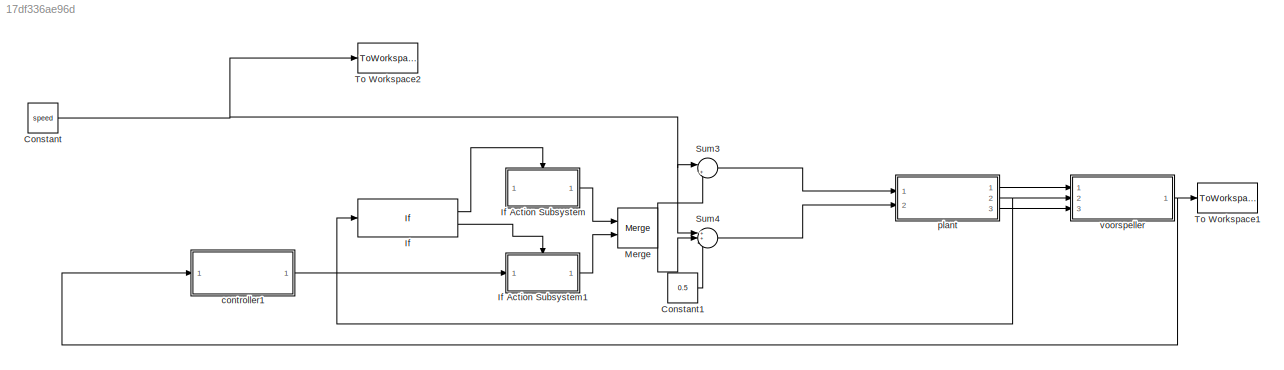
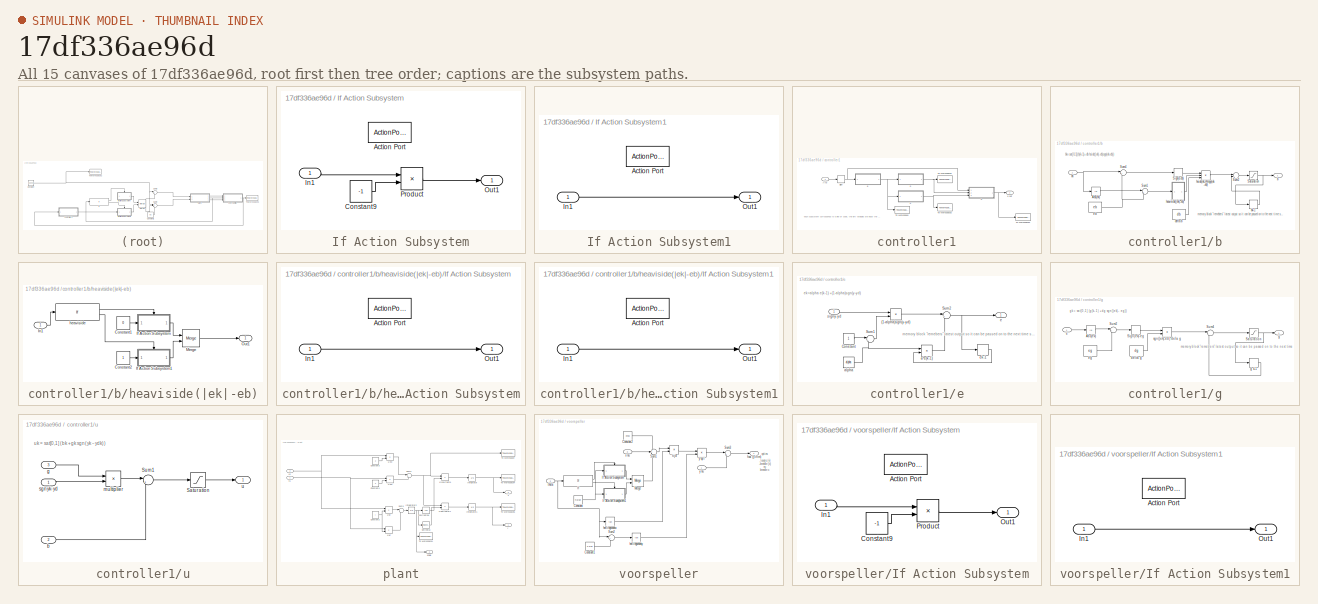
[diagram: thumbnail index - all 15 canvases of the model, root first then tree order]
MODEL slx_17df336ae96d
KIND model
CONFIG AbsTol = auto
CONFIG FixedStep = auto
CONFIG MaxStep = auto
CONFIG MinStep = auto
CONFIG RelTol = 1e-3
CONFIG SampleTimeConstraint = Unconstrained
CONFIG Solver = ode45
CONFIG SolverMode = Auto
CONFIG SolverName = ode45
CONFIG StartTime = 0.0
CONFIG StopTime = 10.0
BLOCK [Constant] Constant
  Value = speed
BLOCK [Constant] Constant1
  Value = 0.5
BLOCK [If] If
  IfExpression = 1.57<u1>4.71
  Ports = [1, 2]
BLOCK [SubSystem] If Action Subsystem
  Ports = [1, 1, 0, 0, 0, 0, 0, 1]
  RequestExecContextInheritance = off
  TreatAsAtomicUnit = on
BLOCK [ActionPort] If Action Subsystem/Action Port
  ActionType = then
BLOCK [Constant] If Action Subsystem/Constant9
  Value = -1
BLOCK [Inport] If Action Subsystem/In1
  IconDisplay = Port number
BLOCK [Outport] If Action Subsystem/Out1
  IconDisplay = Port number
BLOCK [Product] If Action Subsystem/Product
  InputSameDT = off
  OutDataTypeStr = Inherit: Inherit via internal rule
  Ports = [2, 1]
  RndMeth = Floor
  SaturateOnIntegerOverflow = off
BLOCK [SubSystem] If Action Subsystem1
  Ports = [1, 1, 0, 0, 0, 0, 0, 1]
  RequestExecContextInheritance = off
  TreatAsAtomicUnit = on
BLOCK [ActionPort] If Action Subsystem1/Action Port
  ActionType = else
BLOCK [Inport] If Action Subsystem1/In1
  IconDisplay = Port number
BLOCK [Outport] If Action Subsystem1/Out1
  IconDisplay = Port number
BLOCK [Merge] Merge
  Ports = [2, 1]
BLOCK [Sum] Sum3
  IconShape = round
  InputSameDT = off
  Inputs = |+-
  OutDataTypeStr = Inherit: Inherit via internal rule
  Ports = [2, 1]
  SaturateOnIntegerOverflow = off
BLOCK [Sum] Sum4
  IconShape = round
  InputSameDT = off
  Inputs = 3
  OutDataTypeStr = Inherit: Inherit via internal rule
  Ports = [3, 1]
  SaturateOnIntegerOverflow = off
BLOCK [ToWorkspace] To Workspace1
  FixptAsFi = on
  MaxDataPoints = inf
  Ports = [1]
  SampleTime = -1
  Save2DSignal = 3-D array (concatenate along third dimension)
  SaveFormat = Timeseries
  VariableName = fout
BLOCK [ToWorkspace] To Workspace2
  FixptAsFi = on
  MaxDataPoints = inf
  Ports = [1]
  SampleTime = -1
  Save2DSignal = 3-D array (concatenate along third dimension)
  SaveFormat = Timeseries
  VariableName = speed
BLOCK [SubSystem] controller1
  Ports = [1, 1]
  RequestExecContextInheritance = off
BLOCK [Signum] controller1/Sign
BLOCK [ToWorkspace] controller1/To Workspace
  FixptAsFi = on
  MaxDataPoints = inf
  Ports = [1]
  SampleTime = -1
  Save2DSignal = 3-D array (concatenate along third dimension)
  SaveFormat = Timeseries
  VariableName = eout
BLOCK [ToWorkspace] controller1/To Workspace1
  FixptAsFi = on
  MaxDataPoints = inf
  Ports = [1]
  SampleTime = -1
  Save2DSignal = 3-D array (concatenate along third dimension)
  SaveFormat = Timeseries
  VariableName = bout
BLOCK [ToWorkspace] controller1/To Workspace2
  FixptAsFi = on
  MaxDataPoints = inf
  Ports = [1]
  SampleTime = -1
  Save2DSignal = 3-D array (concatenate along third dimension)
  SaveFormat = Timeseries
  VariableName = gout
BLOCK [ToWorkspace] controller1/To Workspace3
  FixptAsFi = on
  MaxDataPoints = inf
  Ports = [1]
  SampleTime = -1
  Save2DSignal = 3-D array (concatenate along third dimension)
  SaveFormat = Timeseries
  VariableName = u
BLOCK [SubSystem] controller1/b
  Ports = [1, 1]
  RequestExecContextInheritance = off
BLOCK [Abs] controller1/b/Abs(ek)
  SaturateOnIntegerOverflow = off
BLOCK [Saturate] controller1/b/Saturation
  InputPortMap = u0
  LowerLimit = -1
  Ports = [1, 1]
  UpperLimit = 1
BLOCK [Signum] controller1/b/Sign(e-eb)
BLOCK [Sum] controller1/b/Sum1
  IconShape = round
  InputSameDT = off
  Inputs = |+-
  OutDataTypeStr = Inherit: Inherit via internal rule
  Ports = [2, 1]
  SaturateOnIntegerOverflow = off
BLOCK [Sum] controller1/b/Sum2
  IconShape = round
  InputSameDT = off
  Inputs = |-+
  OutDataTypeStr = Inherit: Inherit via internal rule
  Ports = [2, 1]
  SaturateOnIntegerOverflow = off
BLOCK [Sum] controller1/b/Sum4
  IconShape = round
  InputSameDT = off
  Inputs = |+-
  OutDataTypeStr = Inherit: Inherit via internal rule
  Ports = [2, 1]
  SaturateOnIntegerOverflow = off
BLOCK [Outport] controller1/b/b
  IconDisplay = Port number
BLOCK [Memory] controller1/b/bk-1
BLOCK [Constant] controller1/b/delta b
  Value = db
BLOCK [Constant] controller1/b/e b
  Value = eb
BLOCK [Inport] controller1/b/ek
  IconDisplay = Port number
BLOCK [SubSystem] controller1/b/heaviside(|ek|-eb)
  Ports = [1, 1]
  RequestExecContextInheritance = off
BLOCK [Constant] controller1/b/heaviside(|ek|-eb)/Constant1
  Value = 0
BLOCK [Constant] controller1/b/heaviside(|ek|-eb)/Constant2
BLOCK [SubSystem] controller1/b/heaviside(|ek|-eb)/If Action Subsystem
  Ports = [1, 1, 0, 0, 0, 0, 0, 1]
  RequestExecContextInheritance = off
  TreatAsAtomicUnit = on
BLOCK [ActionPort] controller1/b/heaviside(|ek|-eb)/If Action Subsystem/Action Port
  ActionType = then
BLOCK [Inport] controller1/b/heaviside(|ek|-eb)/If Action Subsystem/In1
  IconDisplay = Port number
BLOCK [Outport] controller1/b/heaviside(|ek|-eb)/If Action Subsystem/Out1
  IconDisplay = Port number
BLOCK [SubSystem] controller1/b/heaviside(|ek|-eb)/If Action Subsystem1
  Ports = [1, 1, 0, 0, 0, 0, 0, 1]
  RequestExecContextInheritance = off
  TreatAsAtomicUnit = on
BLOCK [ActionPort] controller1/b/heaviside(|ek|-eb)/If Action Subsystem1/Action Port
  ActionType = else
BLOCK [Inport] controller1/b/heaviside(|ek|-eb)/If Action Subsystem1/In1
  IconDisplay = Port number
BLOCK [Outport] controller1/b/heaviside(|ek|-eb)/If Action Subsystem1/Out1
  IconDisplay = Port number
BLOCK [Inport] controller1/b/heaviside(|ek|-eb)/In1
  IconDisplay = Port number
BLOCK [Merge] controller1/b/heaviside(|ek|-eb)/Merge
  Ports = [2, 1]
BLOCK [Outport] controller1/b/heaviside(|ek|-eb)/Out1
  IconDisplay = Port number
BLOCK [If] controller1/b/heaviside(|ek|-eb)/heaviside
  IfExpression = u1 < 0
  Ports = [1, 2]
BLOCK [Product] controller1/b/hside(ek-eb)sgn(ek-eb)
  InputSameDT = off
  Inputs = 3
  OutDataTypeStr = Inherit: Inherit via internal rule
  Ports = [3, 1]
  RndMeth = Floor
  SaturateOnIntegerOverflow = off
BLOCK [SubSystem] controller1/e
  Ports = [1, 1]
  RequestExecContextInheritance = off
BLOCK [Product] controller1/e/(1-alpha)sgn(y-yd)
  InputSameDT = off
  OutDataTypeStr = Inherit: Inherit via internal rule
  Ports = [2, 1]
  RndMeth = Floor
  SaturateOnIntegerOverflow = off
BLOCK [Constant] controller1/e/Constant
BLOCK [Sum] controller1/e/Sum1
  IconShape = round
  InputSameDT = off
  Inputs = |-+
  OutDataTypeStr = Inherit: Inherit via internal rule
  Ports = [2, 1]
  SaturateOnIntegerOverflow = off
BLOCK [Sum] controller1/e/Sum2
  IconShape = round
  InputSameDT = off
  Inputs = |++
  OutDataTypeStr = Inherit: Inherit via internal rule
  Ports = [2, 1]
  SaturateOnIntegerOverflow = off
BLOCK [Product] controller1/e/a*e(k-1)
  InputSameDT = off
  OutDataTypeStr = Inherit: Inherit via internal rule
  Ports = [2, 1]
  RndMeth = Floor
  SaturateOnIntegerOverflow = off
BLOCK [Constant] controller1/e/alpha
  Value = alpha
BLOCK [Outport] controller1/e/e
  IconDisplay = Port number
BLOCK [Memory] controller1/e/ek-1
BLOCK [Inport] controller1/e/signy-yd
  IconDisplay = Port number
BLOCK [SubSystem] controller1/g
  Ports = [1, 1]
  RequestExecContextInheritance = off
BLOCK [Abs] controller1/g/Abs(ek)
  SaturateOnIntegerOverflow = off
BLOCK [Saturate] controller1/g/Saturation
  InputPortMap = u0
  LowerLimit = -1
  Ports = [1, 1]
  UpperLimit = 1
BLOCK [Signum] controller1/g/Sign|ek|-eg
BLOCK [Sum] controller1/g/Sum2
  IconShape = round
  InputSameDT = off
  Inputs = |+-
  OutDataTypeStr = Inherit: Inherit via internal rule
  Ports = [2, 1]
  SaturateOnIntegerOverflow = off
BLOCK [Sum] controller1/g/Sum4
  IconShape = round
  InputSameDT = off
  Inputs = |-+
  OutDataTypeStr = Inherit: Inherit via internal rule
  Ports = [2, 1]
  SaturateOnIntegerOverflow = off
BLOCK [Constant] controller1/g/delta g
  Value = dg
BLOCK [Inport] controller1/g/e
  IconDisplay = Port number
BLOCK [Constant] controller1/g/eg
  Value = eg
BLOCK [Outport] controller1/g/g
  IconDisplay = Port number
BLOCK [Memory] controller1/g/g k-1
BLOCK [Product] controller1/g/sgn(|ek|-eb)*dela g
  InputSameDT = off
  OutDataTypeStr = Inherit: Inherit via internal rule
  Ports = [2, 1]
  RndMeth = Floor
  SaturateOnIntegerOverflow = off
BLOCK [SubSystem] controller1/u
  Ports = [3, 1]
  RequestExecContextInheritance = off
BLOCK [Outport] controller1/u  out
  IconDisplay = Port number
BLOCK [Saturate] controller1/u/Saturation
  InputPortMap = u0
  LowerLimit = -1
  Ports = [1, 1]
  UpperLimit = 1
BLOCK [Sum] controller1/u/Sum1
  IconShape = round
  InputSameDT = off
  Inputs = |++
  OutDataTypeStr = Inherit: Inherit via internal rule
  Ports = [2, 1]
  SaturateOnIntegerOverflow = off
BLOCK [Inport] controller1/u/b
  IconDisplay = Port number
  Port = 2
BLOCK [Inport] controller1/u/g
  IconDisplay = Port number
  Port = 3
BLOCK [Product] controller1/u/multiplier 
  InputSameDT = off
  OutDataTypeStr = Inherit: Inherit via internal rule
  Ports = [2, 1]
  RndMeth = Floor
  SaturateOnIntegerOverflow = off
BLOCK [Inport] controller1/u/sgnyk-yd
  IconDisplay = Port number
BLOCK [Outport] controller1/u/u
  IconDisplay = Port number
BLOCK [Inport] controller1/y-yd
  IconDisplay = Port number
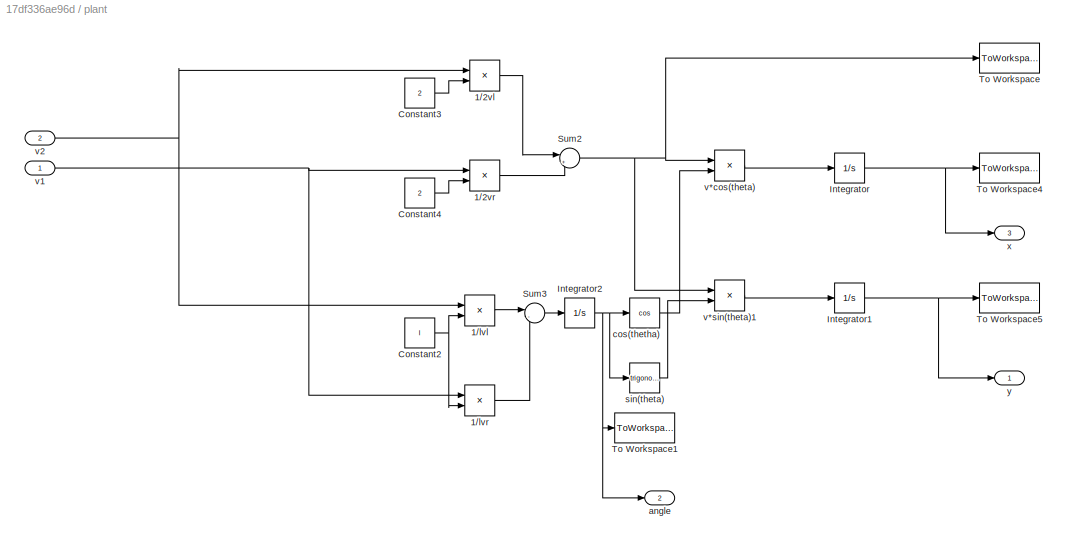
BLOCK [SubSystem] plant
  Ports = [2, 3]
  RequestExecContextInheritance = off
BLOCK [Product] plant/1//2vl
  InputSameDT = off
  Inputs = */
  OutDataTypeStr = Inherit: Inherit via internal rule
  Ports = [2, 1]
  RndMeth = Floor
  SaturateOnIntegerOverflow = off
BLOCK [Product] plant/1//2vr
  InputSameDT = off
  Inputs = */
  OutDataTypeStr = Inherit: Inherit via internal rule
  Ports = [2, 1]
  RndMeth = Floor
  SaturateOnIntegerOverflow = off
BLOCK [Product] plant/1//lvl
  InputSameDT = off
  Inputs = */
  OutDataTypeStr = Inherit: Inherit via internal rule
  Ports = [2, 1]
  RndMeth = Floor
  SaturateOnIntegerOverflow = off
BLOCK [Product] plant/1//lvr
  InputSameDT = off
  Inputs = */
  OutDataTypeStr = Inherit: Inherit via internal rule
  Ports = [2, 1]
  RndMeth = Floor
  SaturateOnIntegerOverflow = off
BLOCK [Constant] plant/Constant2
  Value = l
BLOCK [Constant] plant/Constant3
  Value = 2
BLOCK [Constant] plant/Constant4
  Value = 2
BLOCK [Integrator] plant/Integrator
  Ports = [1, 1]
BLOCK [Integrator] plant/Integrator1
  Ports = [1, 1]
BLOCK [Integrator] plant/Integrator2
  Ports = [1, 1]
BLOCK [Sum] plant/Sum2
  IconShape = round
  InputSameDT = off
  Inputs = |++
  OutDataTypeStr = Inherit: Inherit via internal rule
  Ports = [2, 1]
  SaturateOnIntegerOverflow = off
BLOCK [Sum] plant/Sum3
  IconShape = round
  InputSameDT = off
  Inputs = |-+
  OutDataTypeStr = Inherit: Inherit via internal rule
  Ports = [2, 1]
  SaturateOnIntegerOverflow = off
BLOCK [ToWorkspace] plant/To Workspace
  FixptAsFi = on
  MaxDataPoints = inf
  Ports = [1]
  SampleTime = -1
  Save2DSignal = 3-D array (concatenate along third dimension)
  SaveFormat = Timeseries
  VariableName = velocity
BLOCK [ToWorkspace] plant/To Workspace1
  FixptAsFi = on
  MaxDataPoints = inf
  Ports = [1]
  SampleTime = -1
  Save2DSignal = 3-D array (concatenate along third dimension)
  SaveFormat = Timeseries
  VariableName = angle
BLOCK [ToWorkspace] plant/To Workspace4
  FixptAsFi = on
  MaxDataPoints = inf
  Ports = [1]
  SampleTime = -1
  Save2DSignal = 3-D array (concatenate along third dimension)
  VariableName = x
BLOCK [ToWorkspace] plant/To Workspace5
  FixptAsFi = on
  MaxDataPoints = inf
  Ports = [1]
  SampleTime = -1
  Save2DSignal = 3-D array (concatenate along third dimension)
  VariableName = y
BLOCK [Outport] plant/angle
  IconDisplay = Port number
  Port = 2
BLOCK [Trigonometry] plant/cos(thetha)
  Operator = cos
  Ports = [1, 1]
BLOCK [Trigonometry] plant/sin(theta)
  Ports = [1, 1]
BLOCK [Product] plant/v*cos(theta)
  InputSameDT = off
  Inputs = **
  OutDataTypeStr = Inherit: Inherit via internal rule
  Ports = [2, 1]
  RndMeth = Floor
  SaturateOnIntegerOverflow = off
BLOCK [Product] plant/v*sin(theta)1
  InputSameDT = off
  Inputs = **
  OutDataTypeStr = Inherit: Inherit via internal rule
  Ports = [2, 1]
  RndMeth = Floor
  SaturateOnIntegerOverflow = off
BLOCK [Inport] plant/v1
  IconDisplay = Port number
BLOCK [Inport] plant/v2
  IconDisplay = Port number
  Port = 2
BLOCK [Outport] plant/x
  IconDisplay = Port number
  Port = 3
BLOCK [Outport] plant/y
  IconDisplay = Port number
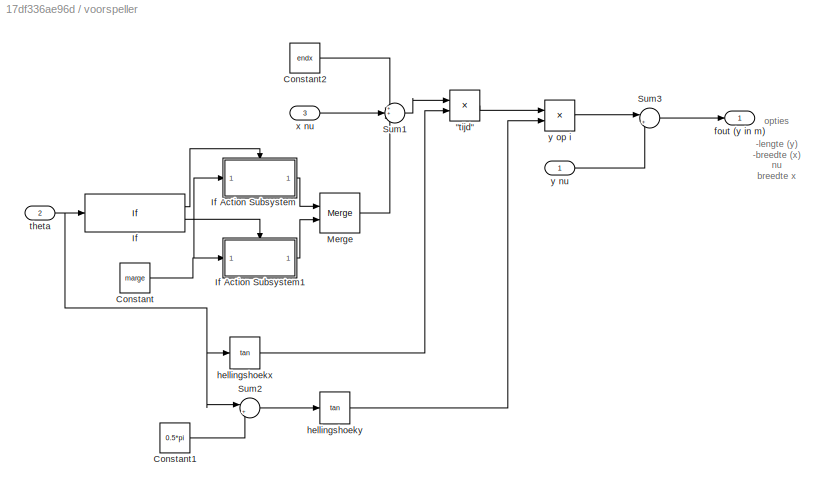
BLOCK [SubSystem] voorspeller
  Ports = [3, 1]
  RequestExecContextInheritance = off
BLOCK [Product] voorspeller/"tijd"
  InputSameDT = off
  Inputs = */
  OutDataTypeStr = Inherit: Inherit via internal rule
  Ports = [2, 1]
  RndMeth = Floor
  SaturateOnIntegerOverflow = off
BLOCK [Constant] voorspeller/Constant
  Value = marge
BLOCK [Constant] voorspeller/Constant1
  Value = 0.5*pi
BLOCK [Constant] voorspeller/Constant2
  Value = endx
BLOCK [If] voorspeller/If
  IfExpression = 1.57<u1>4.71
  Ports = [1, 2]
BLOCK [SubSystem] voorspeller/If Action Subsystem
  Ports = [1, 1, 0, 0, 0, 0, 0, 1]
  RequestExecContextInheritance = off
  TreatAsAtomicUnit = on
BLOCK [ActionPort] voorspeller/If Action Subsystem/Action Port
  ActionType = then
BLOCK [Constant] voorspeller/If Action Subsystem/Constant9
  Value = -1
BLOCK [Inport] voorspeller/If Action Subsystem/In1
  IconDisplay = Port number
BLOCK [Outport] voorspeller/If Action Subsystem/Out1
  IconDisplay = Port number
BLOCK [Product] voorspeller/If Action Subsystem/Product
  InputSameDT = off
  OutDataTypeStr = Inherit: Inherit via internal rule
  Ports = [2, 1]
  RndMeth = Floor
  SaturateOnIntegerOverflow = off
BLOCK [SubSystem] voorspeller/If Action Subsystem1
  Ports = [1, 1, 0, 0, 0, 0, 0, 1]
  RequestExecContextInheritance = off
  TreatAsAtomicUnit = on
BLOCK [ActionPort] voorspeller/If Action Subsystem1/Action Port
  ActionType = else
BLOCK [Inport] voorspeller/If Action Subsystem1/In1
  IconDisplay = Port number
BLOCK [Outport] voorspeller/If Action Subsystem1/Out1
  IconDisplay = Port number
BLOCK [Merge] voorspeller/Merge
  Ports = [2, 1]
BLOCK [Sum] voorspeller/Sum1
  IconShape = round
  InputSameDT = off
  Inputs = 3
  OutDataTypeStr = Inherit: Inherit via internal rule
  Ports = [3, 1]
  SaturateOnIntegerOverflow = off
BLOCK [Sum] voorspeller/Sum2
  IconShape = round
  InputSameDT = off
  Inputs = |++
  OutDataTypeStr = Inherit: Inherit via internal rule
  Ports = [2, 1]
  SaturateOnIntegerOverflow = off
BLOCK [Sum] voorspeller/Sum3
  IconShape = round
  InputSameDT = off
  Inputs = |++
  OutDataTypeStr = Inherit: Inherit via internal rule
  Ports = [2, 1]
  SaturateOnIntegerOverflow = off
BLOCK [Outport] voorspeller/fout (y in m)
  IconDisplay = Port number
BLOCK [Trigonometry] voorspeller/hellingshoekx
  ApproximationMethod = CORDIC
  Operator = tan
  Ports = [1, 1]
BLOCK [Trigonometry] voorspeller/hellingshoeky
  ApproximationMethod = CORDIC
  Operator = tan
  Ports = [1, 1]
BLOCK [Inport] voorspeller/theta
  IconDisplay = Port number
  Port = 2
BLOCK [Inport] voorspeller/x nu
  IconDisplay = Port number
  Port = 3
BLOCK [Inport] voorspeller/y nu
  IconDisplay = Port number
BLOCK [Product] voorspeller/y op i
  InputSameDT = off
  OutDataTypeStr = Inherit: Inherit via internal rule
  Ports = [2, 1]
  RndMeth = Floor
  SaturateOnIntegerOverflow = off
ANNOTATION controller1: each subsystem corrosponds to a line of code, the left variables are input the ones on the right are output
ANNOTATION controller1/b: bk=sat[0,1](b(k-1)+db hside(|ek|-eb)sgn(ek-eb))
ANNOTATION controller1/b: memory block "remebers" latest output so it can be passed on to the next time step
ANNOTATION controller1/e: ek=alpha e(k-1) +(1-alpha)sgn(y-yd)
ANNOTATION controller1/e: memory block "remebers" latest output so it can be passed on to the next time step
ANNOTATION controller1/g: gk = sat[0,1] (g(k−1) +dg sgn(|ek|− eg))
ANNOTATION controller1/g: memory block "remebers" latest output so it can be passed on to the next time step
ANNOTATION controller1/u: uk = sat[0,1] (bk +gk sgn(yk −ydk))
ANNOTATION voorspeller: opties -lengte (y) -breedte (x) nu breedte x is beter want nu onderschijd het signaal links en rechts
LINE Constant1:1 -> Sum4:3
NET Constant:1 -> Sum3:1, Sum4:1, To Workspace2:1
LINE If Action Subsystem/Constant9:1 -> If Action Subsystem/Product:2
LINE If Action Subsystem/In1:1 -> If Action Subsystem/Product:1
LINE If Action Subsystem/Product:1 -> If Action Subsystem/Out1:1
LINE If Action Subsystem1/In1:1 -> If Action Subsystem1/Out1:1
LINE If Action Subsystem1:1 -> Merge:2
LINE If Action Subsystem:1 -> Merge:1
LINE If:1 -> If Action Subsystem:ifaction
LINE If:2 -> If Action Subsystem1:ifaction
NET Merge:1 -> Sum3:2, Sum4:2
LINE Sum3:1 -> plant:1
LINE Sum4:1 -> plant:2
NET controller1/Sign:1 -> controller1/e:1, controller1/u:1
LINE controller1/b/Abs(ek):1 -> controller1/b/Sum1:1
NET controller1/b/Saturation:1 -> controller1/b/b:1, controller1/b/bk-1:1
LINE controller1/b/Sign(e-eb):1 -> controller1/b/hside(ek-eb)sgn(ek-eb):1
LINE controller1/b/Sum1:1 -> controller1/b/heaviside(|ek|-eb):1
LINE controller1/b/Sum2:1 -> controller1/b/Saturation:1
LINE controller1/b/Sum4:1 -> controller1/b/Sign(e-eb):1
LINE controller1/b/bk-1:1 -> controller1/b/Sum2:2
LINE controller1/b/delta b:1 -> controller1/b/hside(ek-eb)sgn(ek-eb):3
NET controller1/b/e b:1 -> controller1/b/Sum1:2, controller1/b/Sum4:2
NET controller1/b/ek:1 -> controller1/b/Abs(ek):1, controller1/b/Sum4:1
LINE controller1/b/heaviside(|ek|-eb)/Constant1:1 -> controller1/b/heaviside(|ek|-eb)/If Action Subsystem:1
LINE controller1/b/heaviside(|ek|-eb)/Constant2:1 -> controller1/b/heaviside(|ek|-eb)/If Action Subsystem1:1
LINE controller1/b/heaviside(|ek|-eb)/If Action Subsystem/In1:1 -> controller1/b/heaviside(|ek|-eb)/If Action Subsystem/Out1:1
LINE controller1/b/heaviside(|ek|-eb)/If Action Subsystem1/In1:1 -> controller1/b/heaviside(|ek|-eb)/If Action Subsystem1/Out1:1
LINE controller1/b/heaviside(|ek|-eb)/If Action Subsystem1:1 -> controller1/b/heaviside(|ek|-eb)/Merge:2
LINE controller1/b/heaviside(|ek|-eb)/If Action Subsystem:1 -> controller1/b/heaviside(|ek|-eb)/Merge:1
LINE controller1/b/heaviside(|ek|-eb)/In1:1 -> controller1/b/heaviside(|ek|-eb)/heaviside:1
LINE controller1/b/heaviside(|ek|-eb)/Merge:1 -> controller1/b/heaviside(|ek|-eb)/Out1:1
LINE controller1/b/heaviside(|ek|-eb)/heaviside:1 -> controller1/b/heaviside(|ek|-eb)/If Action Subsystem:ifaction
LINE controller1/b/heaviside(|ek|-eb)/heaviside:2 -> controller1/b/heaviside(|ek|-eb)/If Action Subsystem1:ifaction
LINE controller1/b/heaviside(|ek|-eb):1 -> controller1/b/hside(ek-eb)sgn(ek-eb):2
LINE controller1/b/hside(ek-eb)sgn(ek-eb):1 -> controller1/b/Sum2:1
NET controller1/b:1 -> controller1/To Workspace1:1, controller1/u:2
LINE controller1/e/(1-alpha)sgn(y-yd):1 -> controller1/e/Sum2:1
LINE controller1/e/Constant:1 -> controller1/e/Sum1:1
LINE controller1/e/Sum1:1 -> controller1/e/(1-alpha)sgn(y-yd):2
NET controller1/e/Sum2:1 -> controller1/e/e:1, controller1/e/ek-1:1
LINE controller1/e/a*e(k-1):1 -> controller1/e/Sum2:2
NET controller1/e/alpha:1 -> controller1/e/Sum1:2, controller1/e/a*e(k-1):1
LINE controller1/e/ek-1:1 -> controller1/e/a*e(k-1):2
LINE controller1/e/signy-yd:1 -> controller1/e/(1-alpha)sgn(y-yd):1
NET controller1/e:1 -> controller1/To Workspace:1, controller1/b:1, controller1/g:1
LINE controller1/g/Abs(ek):1 -> controller1/g/Sum2:1
NET controller1/g/Saturation:1 -> controller1/g/g k-1:1, controller1/g/g:1
LINE controller1/g/Sign|ek|-eg:1 -> controller1/g/sgn(|ek|-eb)*dela g:1
LINE controller1/g/Sum2:1 -> controller1/g/Sign|ek|-eg:1
LINE controller1/g/Sum4:1 -> controller1/g/Saturation:1
LINE controller1/g/delta g:1 -> controller1/g/sgn(|ek|-eb)*dela g:2
LINE controller1/g/e:1 -> controller1/g/Abs(ek):1
LINE controller1/g/eg:1 -> controller1/g/Sum2:2
LINE controller1/g/g k-1:1 -> controller1/g/Sum4:2
LINE controller1/g/sgn(|ek|-eb)*dela g:1 -> controller1/g/Sum4:1
NET controller1/g:1 -> controller1/To Workspace2:1, controller1/u:3
LINE controller1/u/Saturation:1 -> controller1/u/u:1
LINE controller1/u/Sum1:1 -> controller1/u/Saturation:1
LINE controller1/u/b:1 -> controller1/u/Sum1:2
LINE controller1/u/g:1 -> controller1/u/multiplier :1
LINE controller1/u/multiplier :1 -> controller1/u/Sum1:1
LINE controller1/u/sgnyk-yd:1 -> controller1/u/multiplier :2
NET controller1/u:1 -> controller1/To Workspace3:1, controller1/u  out:1
LINE controller1/y-yd:1 -> controller1/Sign:1
LINE controller1:1 -> If Action Subsystem1:1
LINE plant/1//2vl:1 -> plant/Sum2:1
LINE plant/1//2vr:1 -> plant/Sum2:2
LINE plant/1//lvl:1 -> plant/Sum3:1
LINE plant/1//lvr:1 -> plant/Sum3:2
NET plant/Constant2:1 -> plant/1//lvl:2, plant/1//lvr:2
LINE plant/Constant3:1 -> plant/1//2vl:2
LINE plant/Constant4:1 -> plant/1//2vr:2
NET plant/Integrator1:1 -> plant/To Workspace5:1, plant/y:1
NET plant/Integrator2:1 -> plant/To Workspace1:1, plant/angle:1, plant/cos(thetha):1, plant/sin(theta):1
NET plant/Integrator:1 -> plant/To Workspace4:1, plant/x:1
NET plant/Sum2:1 -> plant/To Workspace:1, plant/v*cos(theta):1, plant/v*sin(theta)1:1
LINE plant/Sum3:1 -> plant/Integrator2:1
LINE plant/cos(thetha):1 -> plant/v*cos(theta):2
LINE plant/sin(theta):1 -> plant/v*sin(theta)1:2
LINE plant/v*cos(theta):1 -> plant/Integrator:1
LINE plant/v*sin(theta)1:1 -> plant/Integrator1:1
NET plant/v1:1 -> plant/1//2vr:1, plant/1//lvr:1
NET plant/v2:1 -> plant/1//2vl:1, plant/1//lvl:1
LINE plant:1 -> voorspeller:1
NET plant:2 -> If:1, voorspeller:2
LINE plant:3 -> voorspeller:3
LINE voorspeller/"tijd":1 -> voorspeller/y op i:1
LINE voorspeller/Constant1:1 -> voorspeller/Sum2:2
LINE voorspeller/Constant2:1 -> voorspeller/Sum1:1
NET voorspeller/Constant:1 -> voorspeller/If Action Subsystem1:1, voorspeller/If Action Subsystem:1
LINE voorspeller/If Action Subsystem/Constant9:1 -> voorspeller/If Action Subsystem/Product:2
LINE voorspeller/If Action Subsystem/In1:1 -> voorspeller/If Action Subsystem/Product:1
LINE voorspeller/If Action Subsystem/Product:1 -> voorspeller/If Action Subsystem/Out1:1
LINE voorspeller/If Action Subsystem1/In1:1 -> voorspeller/If Action Subsystem1/Out1:1
LINE voorspeller/If Action Subsystem1:1 -> voorspeller/Merge:2
LINE voorspeller/If Action Subsystem:1 -> voorspeller/Merge:1
LINE voorspeller/If:1 -> voorspeller/If Action Subsystem:ifaction
LINE voorspeller/If:2 -> voorspeller/If Action Subsystem1:ifaction
LINE voorspeller/Merge:1 -> voorspeller/Sum1:3
LINE voorspeller/Sum1:1 -> voorspeller/"tijd":1
LINE voorspeller/Sum2:1 -> voorspeller/hellingshoeky:1
LINE voorspeller/Sum3:1 -> voorspeller/fout (y in m):1
LINE voorspeller/hellingshoekx:1 -> voorspeller/"tijd":2
LINE voorspeller/hellingshoeky:1 -> voorspeller/y op i:2
NET voorspeller/theta:1 -> voorspeller/If:1, voorspeller/Sum2:1, voorspeller/hellingshoekx:1
LINE voorspeller/x nu:1 -> voorspeller/Sum1:2
LINE voorspeller/y nu:1 -> voorspeller/Sum3:2
LINE voorspeller/y op i:1 -> voorspeller/Sum3:1
NET voorspeller:1 -> To Workspace1:1, controller1:1
note: NET lines group one-source signal fan-out (src -> all destinations, sorted); 1:1 wires keep LINE
